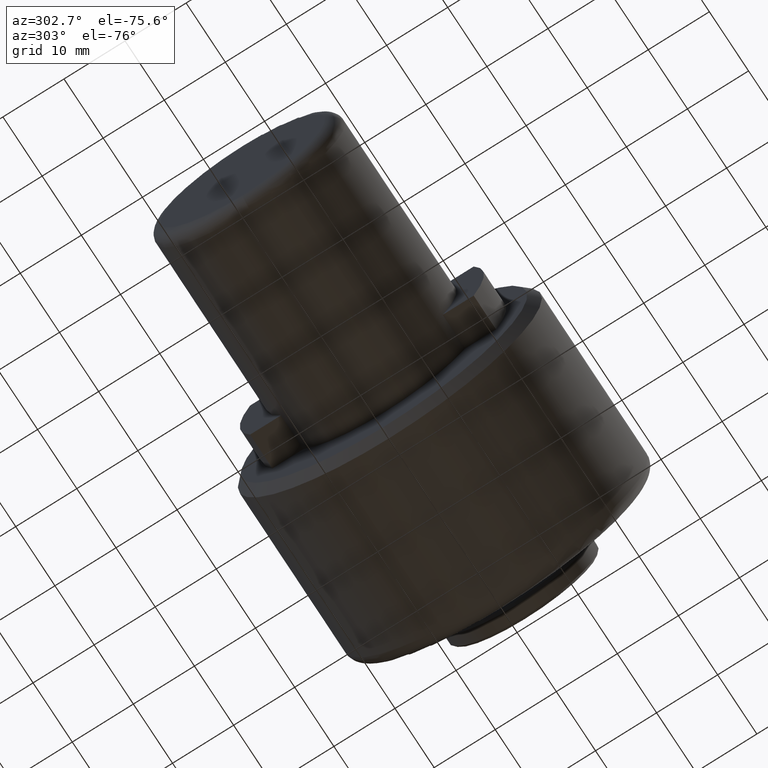
[diagram: clean part render]
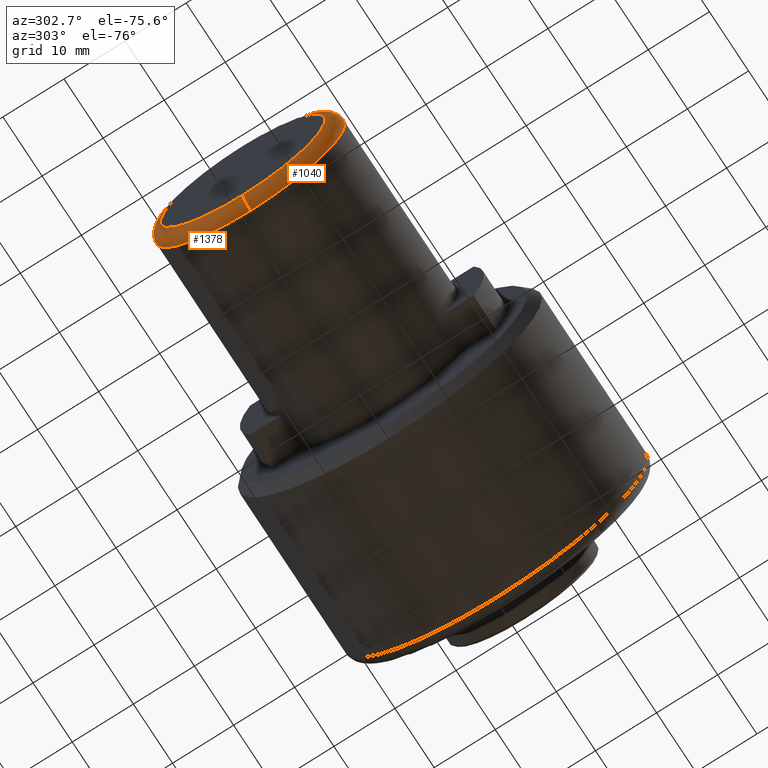
[diagram: same view with one multi-face feature highlighted, each face labeled with its STEP entity id]
A machine part, auxiliary view. The highlighted faces form ONE feature: a constant-radius fillet chain: 2 tangent blend faces with common blend radius 2 mm. The faces share edges in the B-rep.
Their STEP definitions:
[1] entity #1040 (Torus):
#20 = CIRCLE ( 'NONE', #760, 2.000000000000000000 ) ;
#70 = FACE_OUTER_BOUND ( 'NONE', #739, .T. ) ;
#88 = CARTESIAN_POINT ( 'NONE',  ( 0.0000000000000000000, 0.0000000000000000000, 0.0000000000000000000 ) ) ;
#105 = EDGE_CURVE ( 'NONE', #109, #1001, #1000, .T. ) ;
#109 = VERTEX_POINT ( 'NONE', #1435 ) ;
#128 = CARTESIAN_POINT ( 'NONE',  ( 0.0000000000000000000, 0.0000000000000000000, -13.50000000000000000 ) ) ;
#140 = CARTESIAN_POINT ( 'NONE',  ( 2.000000000000001800, 1.898202538678397600E-015, -15.50000000000000000 ) ) ;
#201 = DIRECTION ( 'NONE',  ( 0.0000000000000000000, 0.0000000000000000000, -1.000000000000000000 ) ) ;
#269 = ORIENTED_EDGE ( 'NONE', *, *, #1074, .F. ) ;
#332 = DIRECTION ( 'NONE',  ( 0.0000000000000000000, -1.000000000000000000, -0.0000000000000000000 ) ) ;
#388 = AXIS2_PLACEMENT_3D ( 'NONE', #1228, #554, #1342 ) ;
#416 = VERTEX_POINT ( 'NONE', #140 ) ;
#421 = DIRECTION ( 'NONE',  ( 0.0000000000000000000, 0.0000000000000000000, -1.000000000000000000 ) ) ;
#529 = AXIS2_PLACEMENT_3D ( 'NONE', #1323, #658, #763 ) ;
#554 = DIRECTION ( 'NONE',  ( 1.000000000000000000, -0.0000000000000000000, 0.0000000000000000000 ) ) ;
#613 = AXIS2_PLACEMENT_3D ( 'NONE', #1182, #1088, #1274 ) ;
#634 = AXIS2_PLACEMENT_3D ( 'NONE', #88, #882, #201 ) ;
#642 = TOROIDAL_SURFACE ( 'NONE', #529, 13.50000000000000000, 2.000000000000000000 ) ;
#658 = DIRECTION ( 'NONE',  ( 1.000000000000000000, -0.0000000000000000000, 0.0000000000000000000 ) ) ;
#739 = EDGE_LOOP ( 'NONE', ( #909, #269, #1053, #805 ) ) ;
#760 = AXIS2_PLACEMENT_3D ( 'NONE', #1118, #332, #421 ) ;
#763 = DIRECTION ( 'NONE',  ( 0.0000000000000000000, 0.0000000000000000000, -1.000000000000000000 ) ) ;
#786 = EDGE_CURVE ( 'NONE', #1397, #416, #20, .T. ) ;
#805 = ORIENTED_EDGE ( 'NONE', *, *, #1162, .F. ) ;
#808 = CARTESIAN_POINT ( 'NONE',  ( 2.000000000000001800, 0.0000000000000000000, 15.50000000000000000 ) ) ;
#882 = DIRECTION ( 'NONE',  ( -1.000000000000000000, 0.0000000000000000000, -0.0000000000000000000 ) ) ;
#909 = ORIENTED_EDGE ( 'NONE', *, *, #105, .F. ) ;
#963 = CIRCLE ( 'NONE', #388, 15.50000000000000000 ) ;
#1000 = CIRCLE ( 'NONE', #613, 2.000000000000000000 ) ;
#1001 = VERTEX_POINT ( 'NONE', #808 ) ;
#1040 = ADVANCED_FACE ( 'NONE', ( #70 ), #642, .T. ) ;
#1053 = ORIENTED_EDGE ( 'NONE', *, *, #786, .T. ) ;
#1074 = EDGE_CURVE ( 'NONE', #1397, #109, #1329, .T. ) ;
#1088 = DIRECTION ( 'NONE',  ( 0.0000000000000000000, 1.000000000000000000, -1.224646799147353200E-016 ) ) ;
#1118 = CARTESIAN_POINT ( 'NONE',  ( 2.000000000000001800, 0.0000000000000000000, -13.50000000000000000 ) ) ;
#1162 = EDGE_CURVE ( 'NONE', #1001, #416, #963, .T. ) ;
#1182 = CARTESIAN_POINT ( 'NONE',  ( 2.000000000000001800, 1.653273178848926900E-015, 13.50000000000000000 ) ) ;
#1228 = CARTESIAN_POINT ( 'NONE',  ( 2.000000000000001800, 0.0000000000000000000, 0.0000000000000000000 ) ) ;
#1274 = DIRECTION ( 'NONE',  ( 0.0000000000000000000, 1.224646799147353500E-016, 1.000000000000000000 ) ) ;
#1323 = CARTESIAN_POINT ( 'NONE',  ( 2.000000000000001800, 0.0000000000000000000, 0.0000000000000000000 ) ) ;
#1329 = CIRCLE ( 'NONE', #634, 13.50000000000000000 ) ;
#1342 = DIRECTION ( 'NONE',  ( 0.0000000000000000000, 0.0000000000000000000, -1.000000000000000000 ) ) ;
#1397 = VERTEX_POINT ( 'NONE', #128 ) ;
#1435 = CARTESIAN_POINT ( 'NONE',  ( 0.0000000000000000000, 1.775737858763662000E-015, 13.50000000000000000 ) ) ;
[2] entity #1378 (Torus):
#20 = CIRCLE ( 'NONE', #760, 2.000000000000000000 ) ;
#35 = AXIS2_PLACEMENT_3D ( 'NONE', #301, #815, #675 ) ;
#105 = EDGE_CURVE ( 'NONE', #109, #1001, #1000, .T. ) ;
#109 = VERTEX_POINT ( 'NONE', #1435 ) ;
#128 = CARTESIAN_POINT ( 'NONE',  ( 0.0000000000000000000, 0.0000000000000000000, -13.50000000000000000 ) ) ;
#140 = CARTESIAN_POINT ( 'NONE',  ( 2.000000000000001800, 1.898202538678397600E-015, -15.50000000000000000 ) ) ;
#154 = ORIENTED_EDGE ( 'NONE', *, *, #105, .T. ) ;
#181 = FACE_OUTER_BOUND ( 'NONE', #291, .T. ) ;
#291 = EDGE_LOOP ( 'NONE', ( #556, #154, #1012, #1002 ) ) ;
#301 = CARTESIAN_POINT ( 'NONE',  ( 0.0000000000000000000, 0.0000000000000000000, 0.0000000000000000000 ) ) ;
#332 = DIRECTION ( 'NONE',  ( 0.0000000000000000000, -1.000000000000000000, -0.0000000000000000000 ) ) ;
#384 = CIRCLE ( 'NONE', #419, 15.50000000000000000 ) ;
#411 = CARTESIAN_POINT ( 'NONE',  ( 2.000000000000001800, 0.0000000000000000000, 0.0000000000000000000 ) ) ;
#416 = VERTEX_POINT ( 'NONE', #140 ) ;
#419 = AXIS2_PLACEMENT_3D ( 'NONE', #411, #965, #686 ) ;
#421 = DIRECTION ( 'NONE',  ( 0.0000000000000000000, 0.0000000000000000000, -1.000000000000000000 ) ) ;
#447 = CARTESIAN_POINT ( 'NONE',  ( 2.000000000000001800, 0.0000000000000000000, 0.0000000000000000000 ) ) ;
#511 = TOROIDAL_SURFACE ( 'NONE', #609, 13.50000000000000000, 2.000000000000000000 ) ;
#539 = EDGE_CURVE ( 'NONE', #416, #1001, #384, .T. ) ;
#556 = ORIENTED_EDGE ( 'NONE', *, *, #558, .F. ) ;
#558 = EDGE_CURVE ( 'NONE', #109, #1397, #1255, .T. ) ;
#609 = AXIS2_PLACEMENT_3D ( 'NONE', #447, #1009, #1346 ) ;
#613 = AXIS2_PLACEMENT_3D ( 'NONE', #1182, #1088, #1274 ) ;
#675 = DIRECTION ( 'NONE',  ( 0.0000000000000000000, 0.0000000000000000000, -1.000000000000000000 ) ) ;
#686 = DIRECTION ( 'NONE',  ( 0.0000000000000000000, 0.0000000000000000000, -1.000000000000000000 ) ) ;
#760 = AXIS2_PLACEMENT_3D ( 'NONE', #1118, #332, #421 ) ;
#786 = EDGE_CURVE ( 'NONE', #1397, #416, #20, .T. ) ;
#808 = CARTESIAN_POINT ( 'NONE',  ( 2.000000000000001800, 0.0000000000000000000, 15.50000000000000000 ) ) ;
#815 = DIRECTION ( 'NONE',  ( -1.000000000000000000, 0.0000000000000000000, -0.0000000000000000000 ) ) ;
#965 = DIRECTION ( 'NONE',  ( 1.000000000000000000, -0.0000000000000000000, 0.0000000000000000000 ) ) ;
#1000 = CIRCLE ( 'NONE', #613, 2.000000000000000000 ) ;
#1001 = VERTEX_POINT ( 'NONE', #808 ) ;
#1002 = ORIENTED_EDGE ( 'NONE', *, *, #786, .F. ) ;
#1009 = DIRECTION ( 'NONE',  ( 1.000000000000000000, -0.0000000000000000000, 0.0000000000000000000 ) ) ;
#1012 = ORIENTED_EDGE ( 'NONE', *, *, #539, .F. ) ;
#1088 = DIRECTION ( 'NONE',  ( 0.0000000000000000000, 1.000000000000000000, -1.224646799147353200E-016 ) ) ;
#1118 = CARTESIAN_POINT ( 'NONE',  ( 2.000000000000001800, 0.0000000000000000000, -13.50000000000000000 ) ) ;
#1182 = CARTESIAN_POINT ( 'NONE',  ( 2.000000000000001800, 1.653273178848926900E-015, 13.50000000000000000 ) ) ;
#1255 = CIRCLE ( 'NONE', #35, 13.50000000000000000 ) ;
#1274 = DIRECTION ( 'NONE',  ( 0.0000000000000000000, 1.224646799147353500E-016, 1.000000000000000000 ) ) ;
#1346 = DIRECTION ( 'NONE',  ( 0.0000000000000000000, 0.0000000000000000000, -1.000000000000000000 ) ) ;
#1378 = ADVANCED_FACE ( 'NONE', ( #181 ), #511, .T. ) ;
#1397 = VERTEX_POINT ( 'NONE', #128 ) ;
#1435 = CARTESIAN_POINT ( 'NONE',  ( 0.0000000000000000000, 1.775737858763662000E-015, 13.50000000000000000 ) ) ;